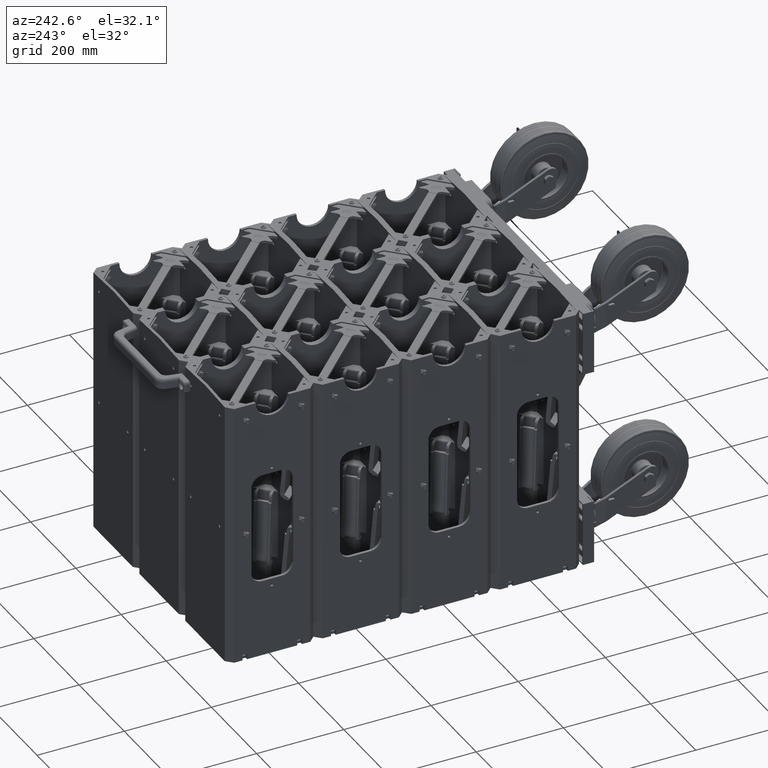
[diagram: clean part render]
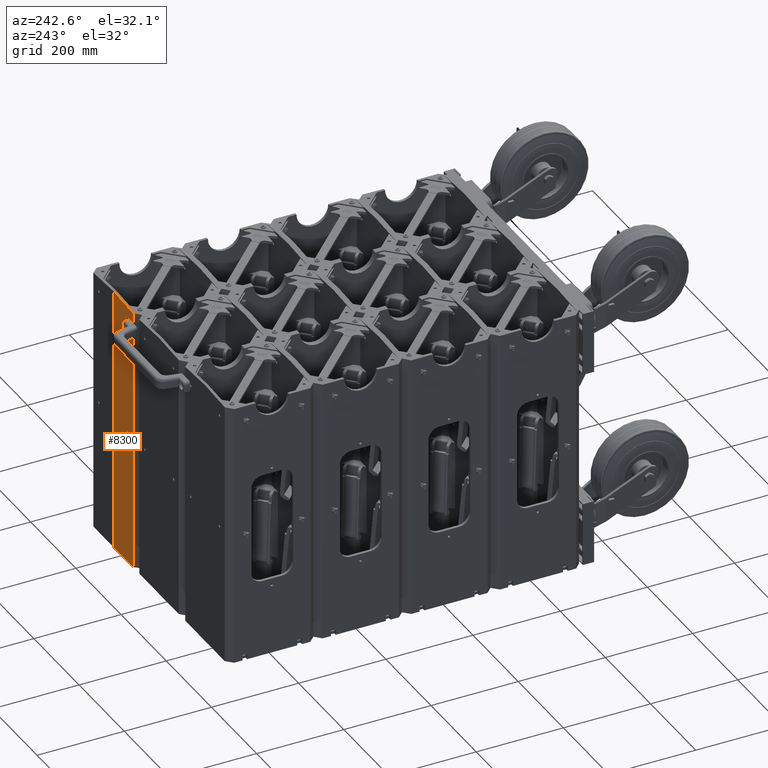
[diagram: same view with one face highlighted and labeled with its STEP entity id]
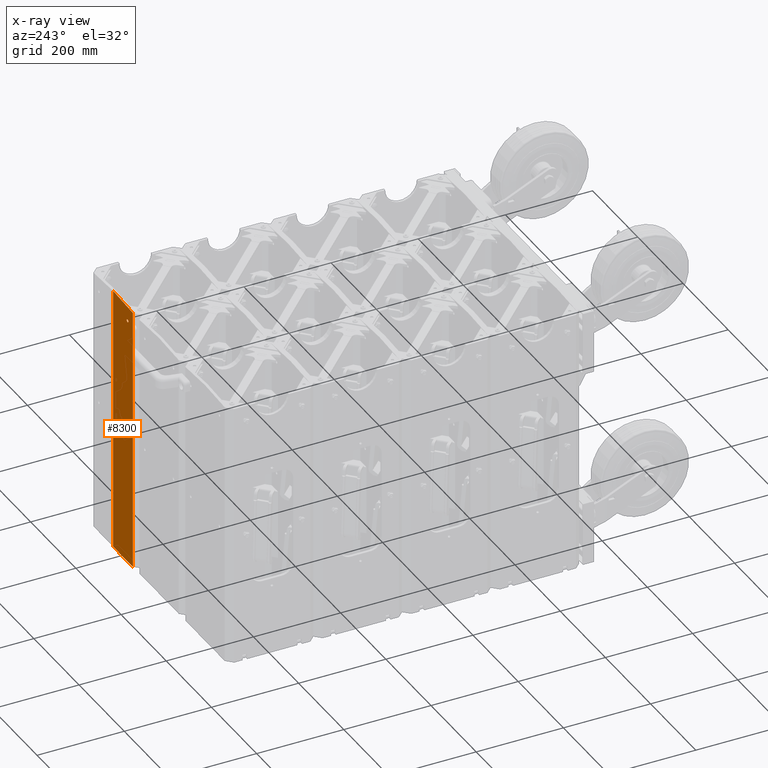
[diagram: x-ray of the same camera — body ghosted, the highlighted face saturated]
A machine part, auxiliary view. The second image highlights one B-rep face of the part: STEP entity #8300.
The next image is the same camera in x-ray: the body ghosted, the highlighted face saturated — about 0% of this face is hidden behind the body in this view.
In plain terms, the highlighted planar face has unit normal (-0, -1, -0).
Its self-contained STEP definition (entity closure, byte-faithful):
#154 = CARTESIAN_POINT ( 'NONE',  ( 4.000000000000002700, -2.366999999999999500, -0.1745312500000002200 ) ) ;
#155 = CARTESIAN_POINT ( 'NONE',  ( 4.000000000000002700, -2.633000000000000000, -0.1745312500000002200 ) ) ;
#162 = CARTESIAN_POINT ( 'NONE',  ( 4.000000000000002700, -2.367000000000000000, -10.67453124999999900 ) ) ;
#163 = CARTESIAN_POINT ( 'NONE',  ( 4.000000000000002700, -2.632999999999999600, -10.67453124999999900 ) ) ;
#435 = AXIS2_PLACEMENT_3D ( 'NONE', #4713, #4715, #4716 ) ;
#439 = AXIS2_PLACEMENT_3D ( 'NONE', #4733, #4735, #4736 ) ;
#453 = AXIS2_PLACEMENT_3D ( 'NONE', #4891, #5899, #5900 ) ;
#455 = AXIS2_PLACEMENT_3D ( 'NONE', #5895, #5902, #5903 ) ;
#2482 = CARTESIAN_POINT ( 'NONE',  ( 4.000000000000000000, 0.0000000000000000000, 12.10500000000000000 ) ) ;
#2483 = CARTESIAN_POINT ( 'NONE',  ( 4.000000000000000000, 0.0000000000000000000, -12.10500000000000000 ) ) ;
#2505 = CARTESIAN_POINT ( 'NONE',  ( 4.000000000000001800, -3.437499999999997300, 12.10500000000000000 ) ) ;
#2518 = CARTESIAN_POINT ( 'NONE',  ( 3.999999999999998700, -3.437500000000002200, -11.92453125000000100 ) ) ;
#4713 = CARTESIAN_POINT ( 'NONE',  ( 4.000000000000002700, -2.499999999999999600, -0.1745312500000002200 ) ) ;
#4715 = DIRECTION ( 'NONE',  ( -1.000000000000000000, -1.365923996832131600E-016, 0.0000000000000000000 ) ) ;
#4716 = DIRECTION ( 'NONE',  ( 0.0000000000000000000, -1.000000000000000000, 0.0000000000000000000 ) ) ;
#4733 = CARTESIAN_POINT ( 'NONE',  ( 4.000000000000002700, -2.499999999999999600, -10.67453124999999900 ) ) ;
#4735 = DIRECTION ( 'NONE',  ( -1.000000000000000000, -1.365923996832131600E-016, 0.0000000000000000000 ) ) ;
#4736 = DIRECTION ( 'NONE',  ( 0.0000000000000000000, -1.000000000000000000, 0.0000000000000000000 ) ) ;
#4801 = CARTESIAN_POINT ( 'NONE',  ( 4.000000000000000000, 0.0000000000000000000, 12.10500000000000000 ) ) ;
#4804 = DIRECTION ( 'NONE',  ( 0.0000000000000000000, 0.0000000000000000000, -1.000000000000000000 ) ) ;
#4861 = CARTESIAN_POINT ( 'NONE',  ( 3.999999999999999600, 4.000000000000000000, 12.10500000000000000 ) ) ;
#4862 = DIRECTION ( 'NONE',  ( -1.365923996832131600E-016, 1.000000000000000000, -0.0000000000000000000 ) ) ;
#4873 = CARTESIAN_POINT ( 'NONE',  ( 4.000000000000000900, -3.437499999999999600, 12.10500000000000000 ) ) ;
#4879 = CARTESIAN_POINT ( 'NONE',  ( 4.000000000000000000, -4.000000000000000900, -11.89500000000000000 ) ) ;
#4880 = DIRECTION ( 'NONE',  ( 0.0000000000000000000, 0.9986247173150795100, -0.05242779765904172200 ) ) ;
#4882 = DIRECTION ( 'NONE',  ( 0.0000000000000000000, 0.0000000000000000000, -1.000000000000000000 ) ) ;
#4891 = CARTESIAN_POINT ( 'NONE',  ( 4.000000000000002700, -2.499999999999999600, -10.67453124999999900 ) ) ;
#5185 = CIRCLE ( 'NONE', #435, 0.1330000000000004800 ) ;
#5198 = CIRCLE ( 'NONE', #439, 0.1329999999999999200 ) ;
#5239 = LINE ( 'NONE', #4801, #5244 ) ;
#5244 = VECTOR ( 'NONE', #4804, 39.37007874015748100 ) ;
#5298 = LINE ( 'NONE', #4861, #5299 ) ;
#5299 = VECTOR ( 'NONE', #4862, 39.37007874015748100 ) ;
#5303 = LINE ( 'NONE', #4873, #5317 ) ;
#5315 = LINE ( 'NONE', #4879, #5316 ) ;
#5316 = VECTOR ( 'NONE', #4880, 39.37007874015748100 ) ;
#5317 = VECTOR ( 'NONE', #4882, 39.37007874015748100 ) ;
#5330 = CIRCLE ( 'NONE', #453, 0.1329999999999999200 ) ;
#5332 = CIRCLE ( 'NONE', #455, 0.1330000000000004800 ) ;
#5895 = CARTESIAN_POINT ( 'NONE',  ( 4.000000000000002700, -2.499999999999999600, -0.1745312500000002200 ) ) ;
#5899 = DIRECTION ( 'NONE',  ( -1.000000000000000000, -1.365923996832131600E-016, 0.0000000000000000000 ) ) ;
#5900 = DIRECTION ( 'NONE',  ( 0.0000000000000000000, -1.000000000000000000, 0.0000000000000000000 ) ) ;
#5902 = DIRECTION ( 'NONE',  ( -1.000000000000000000, -1.365923996832131600E-016, 0.0000000000000000000 ) ) ;
#5903 = DIRECTION ( 'NONE',  ( 0.0000000000000000000, -1.000000000000000000, 0.0000000000000000000 ) ) ;
#8300 = ADVANCED_FACE ( 'NONE', ( #28002, #28001, #28010 ), #28693, .F. ) ;
#16455 = VERTEX_POINT ( 'NONE', #154 ) ;
#16456 = VERTEX_POINT ( 'NONE', #155 ) ;
#16463 = VERTEX_POINT ( 'NONE', #162 ) ;
#16464 = VERTEX_POINT ( 'NONE', #163 ) ;
#16494 = VERTEX_POINT ( 'NONE', #2482 ) ;
#16495 = VERTEX_POINT ( 'NONE', #2483 ) ;
#16517 = VERTEX_POINT ( 'NONE', #2505 ) ;
#16530 = VERTEX_POINT ( 'NONE', #2518 ) ;
#18184 = EDGE_LOOP ( 'NONE', ( #19973, #19974 ) ) ;
#18210 = EDGE_LOOP ( 'NONE', ( #19975, #19976 ) ) ;
#18211 = EDGE_LOOP ( 'NONE', ( #19977, #19978, #19979, #19980 ) ) ;
#18871 = EDGE_CURVE ( 'NONE', #16455, #16456, #5185, .T. ) ;
#18879 = EDGE_CURVE ( 'NONE', #16463, #16464, #5198, .T. ) ;
#18908 = EDGE_CURVE ( 'NONE', #16494, #16495, #5239, .T. ) ;
#18936 = EDGE_CURVE ( 'NONE', #16517, #16494, #5298, .T. ) ;
#18945 = EDGE_CURVE ( 'NONE', #16530, #16495, #5315, .T. ) ;
#18946 = EDGE_CURVE ( 'NONE', #16517, #16530, #5303, .T. ) ;
#18953 = EDGE_CURVE ( 'NONE', #16464, #16463, #5330, .T. ) ;
#18954 = EDGE_CURVE ( 'NONE', #16456, #16455, #5332, .T. ) ;
#19973 = ORIENTED_EDGE ( 'NONE', *, *, #18953, .T. ) ;
#19974 = ORIENTED_EDGE ( 'NONE', *, *, #18879, .T. ) ;
#19975 = ORIENTED_EDGE ( 'NONE', *, *, #18954, .T. ) ;
#19976 = ORIENTED_EDGE ( 'NONE', *, *, #18871, .T. ) ;
#19977 = ORIENTED_EDGE ( 'NONE', *, *, #18908, .F. ) ;
#19978 = ORIENTED_EDGE ( 'NONE', *, *, #18936, .F. ) ;
#19979 = ORIENTED_EDGE ( 'NONE', *, *, #18946, .T. ) ;
#19980 = ORIENTED_EDGE ( 'NONE', *, *, #18945, .T. ) ;
#26964 = AXIS2_PLACEMENT_3D ( 'NONE', #28694, #28695, #28696 ) ;
#28001 = FACE_BOUND ( 'NONE', #18210, .T. ) ;
#28002 = FACE_BOUND ( 'NONE', #18184, .T. ) ;
#28010 = FACE_OUTER_BOUND ( 'NONE', #18211, .T. ) ;
#28693 = PLANE ( 'NONE',  #26964 ) ;
#28694 = CARTESIAN_POINT ( 'NONE',  ( 3.999999999999999600, 4.000000000000000000, 12.10500000000000000 ) ) ;
#28695 = DIRECTION ( 'NONE',  ( -1.000000000000000000, -1.365923996832131600E-016, 0.0000000000000000000 ) ) ;
#28696 = DIRECTION ( 'NONE',  ( 1.365923996832131600E-016, -1.000000000000000000, 0.0000000000000000000 ) ) ;